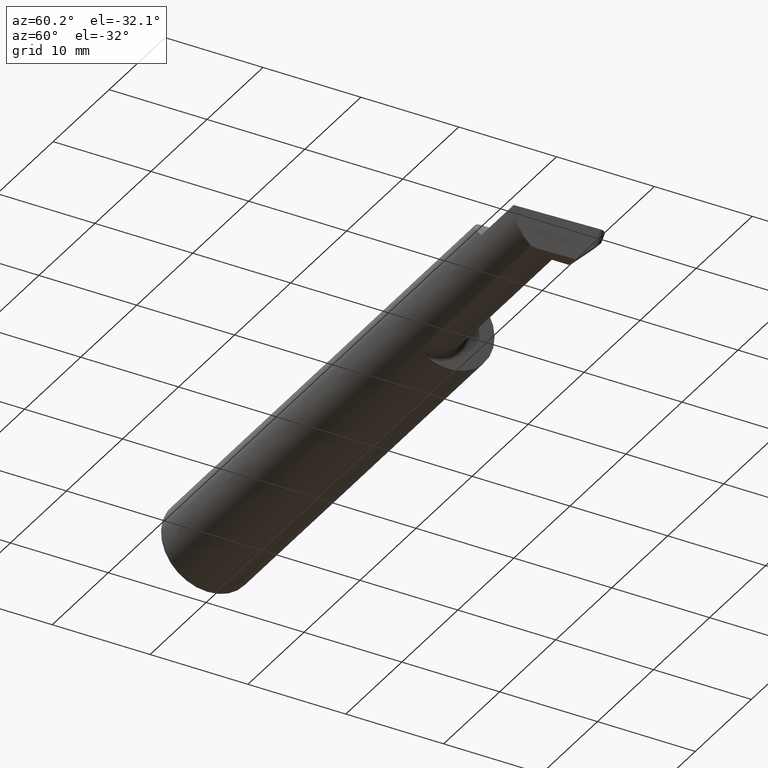
[diagram: clean part render]
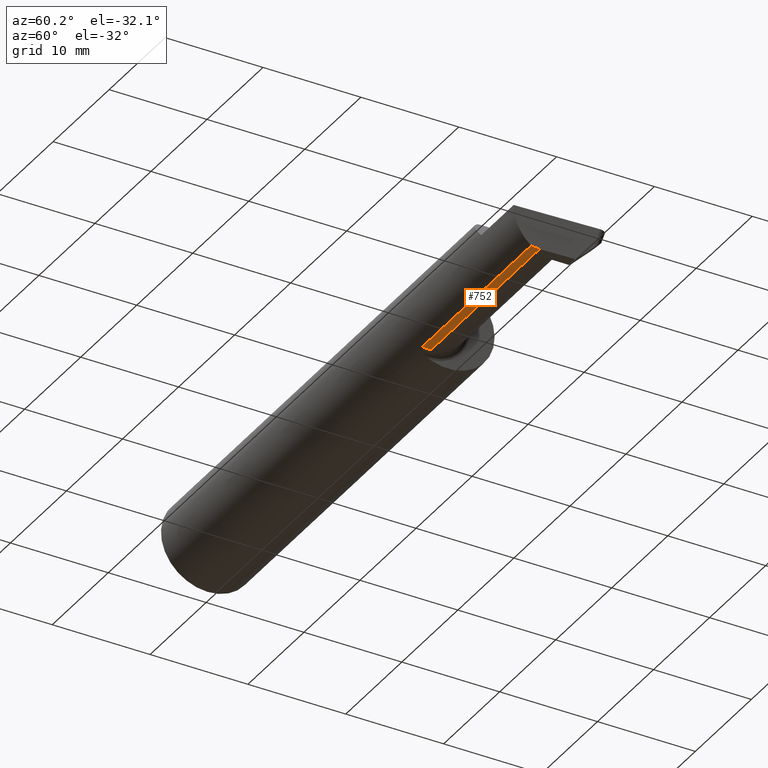
[diagram: same view with one face highlighted and labeled with its STEP entity id]
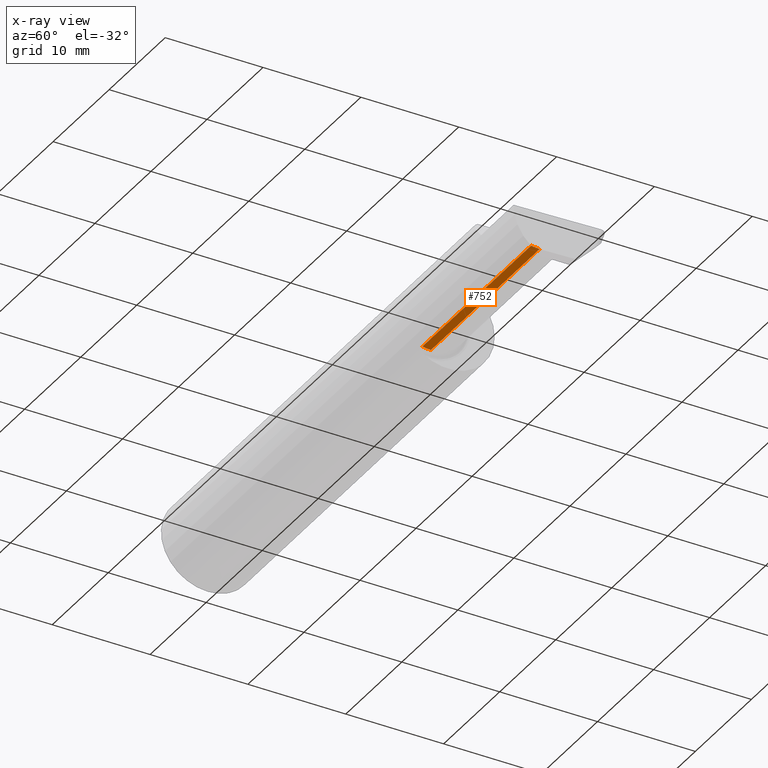
[diagram: x-ray of the same camera — body ghosted, the highlighted face saturated]
A machine part, auxiliary view. The second image highlights one B-rep face of the part: STEP entity #752.
The next image is the same camera in x-ray: the body ghosted, the highlighted face saturated — about 0% of this face is hidden behind the body in this view.
In plain terms, the highlighted cylindrical surface (partial cylindrical patch) has radius 3.81 mm, axis along (-1, -0, -0).
Its self-contained STEP definition (entity closure, byte-faithful):
#21 = CARTESIAN_POINT ( 'NONE',  ( 2.084449999999999914, -0.1172600179964006784, -0.1461167706989303650 ) ) ;
#33 = DIRECTION ( 'NONE',  ( -1.000000000000000000, -0.000000000000000000, -0.000000000000000000 ) ) ;
#34 = CARTESIAN_POINT ( 'NONE',  ( 2.488618975064261996, -0.09477667630339429994, -0.1499999999999999944 ) ) ;
#37 = EDGE_CURVE ( 'NONE', #134, #299, #460, .T. ) ;
#60 = LINE ( 'NONE', #200, #290 ) ;
#67 = DIRECTION ( 'NONE',  ( -1.000000000000000000, -0.000000000000000000, -0.000000000000000000 ) ) ;
#88 = DIRECTION ( 'NONE',  ( 0.000000000000000000, 0.000000000000000000, 1.000000000000000000 ) ) ;
#134 = VERTEX_POINT ( 'NONE', #763 ) ;
#166 = DIRECTION ( 'NONE',  ( 0.000000000000000000, 0.000000000000000000, 1.000000000000000000 ) ) ;
#169 = FACE_OUTER_BOUND ( 'NONE', #287, .T. ) ;
#170 = VERTEX_POINT ( 'NONE', #729 ) ;
#193 = ORIENTED_EDGE ( 'NONE', *, *, #37, .F. ) ;
#198 = EDGE_CURVE ( 'NONE', #170, #134, #794, .T. ) ;
#200 = CARTESIAN_POINT ( 'NONE',  ( 1.699999999999999956, -0.08334999999999997966, -0.1499999999999999944 ) ) ;
#270 = CARTESIAN_POINT ( 'NONE',  ( 1.724999999999999867, -0.08334999999999999354, 0.000000000000000000 ) ) ;
#271 = CARTESIAN_POINT ( 'NONE',  ( 2.488245243745037527, -0.1061291577212409715, -0.1486999626928446339 ) ) ;
#287 = EDGE_LOOP ( 'NONE', ( #746, #193, #687, #566, #291 ) ) ;
#290 = VECTOR ( 'NONE', #67, 39.37007874015748143 ) ;
#291 = ORIENTED_EDGE ( 'NONE', *, *, #581, .F. ) ;
#299 = VERTEX_POINT ( 'NONE', #805 ) ;
#335 = CARTESIAN_POINT ( 'NONE',  ( 2.487901662807321390, -0.1172600179964006784, -0.1461167706989303650 ) ) ;
#346 = DIRECTION ( 'NONE',  ( -1.000000000000000000, -0.000000000000000000, -0.000000000000000000 ) ) ;
#364 = CARTESIAN_POINT ( 'NONE',  ( 1.724999999999999867, -0.1172600179964006784, -0.1461167706989303650 ) ) ;
#391 = AXIS2_PLACEMENT_3D ( 'NONE', #738, #487, #166 ) ;
#428 = CYLINDRICAL_SURFACE ( 'NONE', #391, 0.1499999999999999944 ) ;
#460 = LINE ( 'NONE', #769, #806 ) ;
#466 = EDGE_CURVE ( 'NONE', #299, #749, #60, .T. ) ;
#478 = LINE ( 'NONE', #21, #632 ) ;
#487 = DIRECTION ( 'NONE',  ( -1.000000000000000000, -0.000000000000000000, -0.000000000000000000 ) ) ;
#501 = CARTESIAN_POINT ( 'NONE',  ( 1.724999999999999867, -0.08334999999999997966, -0.1499999999999999944 ) ) ;
#566 = ORIENTED_EDGE ( 'NONE', *, *, #642, .T. ) ;
#571 = DIRECTION ( 'NONE',  ( -1.000000000000000000, -0.000000000000000000, -0.000000000000000000 ) ) ;
#581 = EDGE_CURVE ( 'NONE', #749, #761, #587, .T. ) ;
#587 = CIRCLE ( 'NONE', #618, 0.1499999999999999944 ) ;
#618 = AXIS2_PLACEMENT_3D ( 'NONE', #270, #33, #88 ) ;
#632 = VECTOR ( 'NONE', #346, 39.37007874015748143 ) ;
#642 = EDGE_CURVE ( 'NONE', #170, #761, #478, .T. ) ;
#687 = ORIENTED_EDGE ( 'NONE', *, *, #198, .F. ) ;
#720 = CARTESIAN_POINT ( 'NONE',  ( 2.489018003393509648, -0.08335000000000014619, -0.1500000000000000500 ) ) ;
#729 = CARTESIAN_POINT ( 'NONE',  ( 2.487901662807321390, -0.1172600179964006784, -0.1461167706989303650 ) ) ;
#738 = CARTESIAN_POINT ( 'NONE',  ( 1.699999999999999956, -0.08334999999999999354, 0.000000000000000000 ) ) ;
#746 = ORIENTED_EDGE ( 'NONE', *, *, #466, .F. ) ;
#749 = VERTEX_POINT ( 'NONE', #501 ) ;
#752 = ADVANCED_FACE ( 'NONE', ( #169 ), #428, .T. ) ;
#761 = VERTEX_POINT ( 'NONE', #364 ) ;
#763 = CARTESIAN_POINT ( 'NONE',  ( 2.489018003393509648, -0.08335000000000014619, -0.1500000000000000500 ) ) ;
#769 = CARTESIAN_POINT ( 'NONE',  ( 2.733184360054361939, -0.08335000000000014619, -0.1500000000000000500 ) ) ;
#794 =( BOUNDED_CURVE ( )  B_SPLINE_CURVE ( 3, ( #335, #271, #34, #720 ),
 .UNSPECIFIED., .F., .T. ) 
 B_SPLINE_CURVE_WITH_KNOTS ( ( 4, 4 ),
 ( 0.8789888184544266680, 1.107026853503869868 ),
 .UNSPECIFIED. ) 
 CURVE ( )  GEOMETRIC_REPRESENTATION_ITEM ( )  RATIONAL_B_SPLINE_CURVE ( ( 1.000000000000000000, 0.9956712472009929815, 0.9956712472009929815, 1.000000000000000000 ) ) 
 REPRESENTATION_ITEM ( '' )  );
#805 = CARTESIAN_POINT ( 'NONE',  ( 2.449781798287666401, -0.08334999999999999354, -0.1500000000000000222 ) ) ;
#806 = VECTOR ( 'NONE', #571, 39.37007874015748143 ) ;